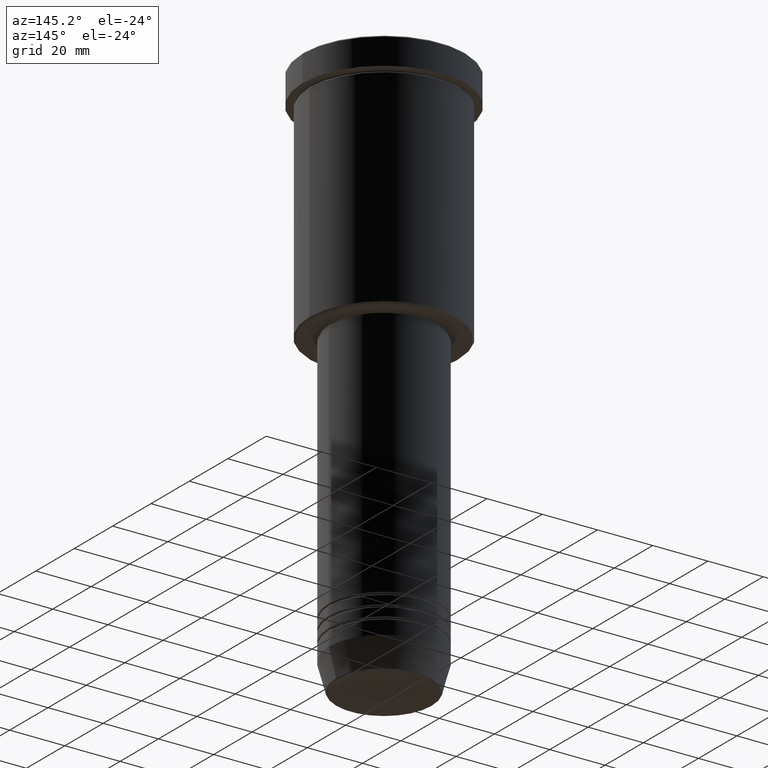
[diagram: clean part render]
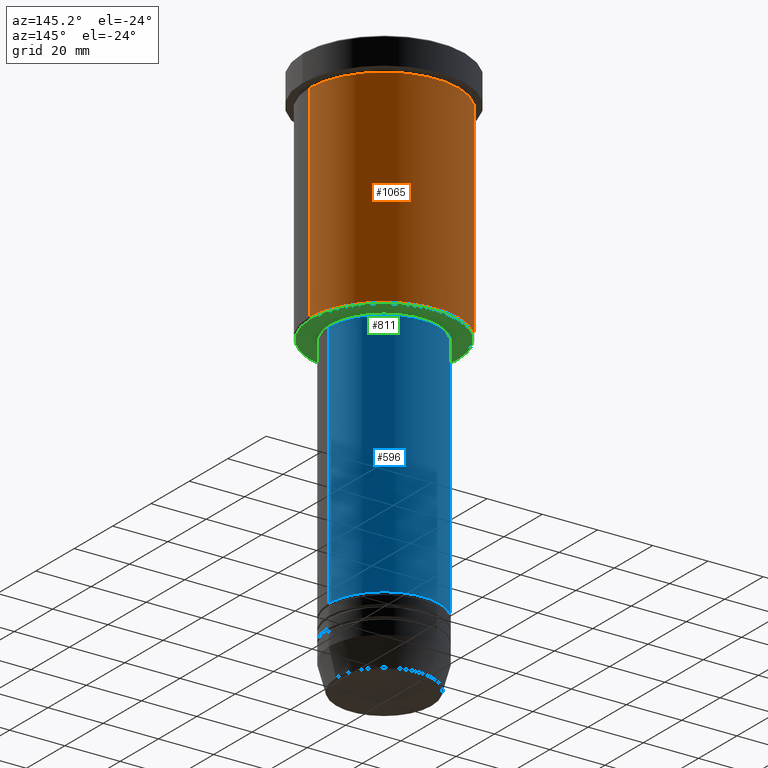
[diagram: same view with three faces highlighted in distinct colors, each labeled with its STEP entity id]
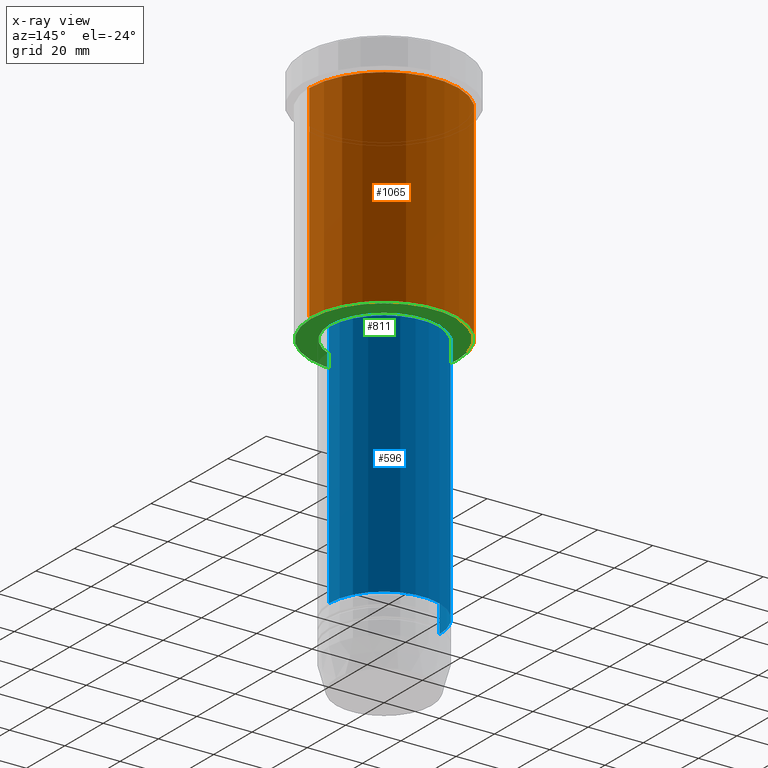
[diagram: x-ray of the same camera — body ghosted, the three highlighted faces saturated]
A machine part, auxiliary view with three faces highlighted in distinct colors.
The next image is the same camera in x-ray (body ghosted, the three faces saturated) — at least one of them is partly hidden behind the body in this view.
Their STEP definitions:

[orange] entity #1065 — the highlighted cylindrical surface (partial cylindrical patch) has radius 27 mm, axis along (-0, -0, 1).
#35 = ORIENTED_EDGE ( 'NONE', *, *, #169, .T. ) ;
#71 = AXIS2_PLACEMENT_3D ( 'NONE', #1105, #501, #848 ) ;
#122 = LINE ( 'NONE', #763, #518 ) ;
#150 = DIRECTION ( 'NONE',  ( 1.000000000000000000, 0.000000000000000000, 0.000000000000000000 ) ) ;
#169 = EDGE_CURVE ( 'NONE', #803, #358, #955, .T. ) ;
#225 = LINE ( 'NONE', #974, #381 ) ;
#232 = DIRECTION ( 'NONE',  ( -0.000000000000000000, -0.000000000000000000, 1.000000000000000000 ) ) ;
#238 = EDGE_CURVE ( 'NONE', #358, #814, #225, .T. ) ;
#252 = EDGE_CURVE ( 'NONE', #794, #814, #644, .T. ) ;
#264 = CARTESIAN_POINT ( 'NONE',  ( 27.00000000000000355, 0.000000000000000000, -85.50000000000000000 ) ) ;
#314 = ORIENTED_EDGE ( 'NONE', *, *, #238, .T. ) ;
#326 = ORIENTED_EDGE ( 'NONE', *, *, #252, .F. ) ;
#334 = CARTESIAN_POINT ( 'NONE',  ( 0.000000000000000000, 0.000000000000000000, 0.000000000000000000 ) ) ;
#339 = CYLINDRICAL_SURFACE ( 'NONE', #465, 27.00000000000000355 ) ;
#358 = VERTEX_POINT ( 'NONE', #737 ) ;
#381 = VECTOR ( 'NONE', #1049, 1000.000000000000000 ) ;
#465 = AXIS2_PLACEMENT_3D ( 'NONE', #334, #700, #613 ) ;
#501 = DIRECTION ( 'NONE',  ( -0.000000000000000000, -0.000000000000000000, 1.000000000000000000 ) ) ;
#515 = EDGE_CURVE ( 'NONE', #803, #794, #122, .T. ) ;
#518 = VECTOR ( 'NONE', #1128, 1000.000000000000000 ) ;
#587 = CARTESIAN_POINT ( 'NONE',  ( 27.00000000000000355, 0.000000000000000000, -10.99999999999999289 ) ) ;
#613 = DIRECTION ( 'NONE',  ( 1.000000000000000000, 0.000000000000000000, 0.000000000000000000 ) ) ;
#636 = CARTESIAN_POINT ( 'NONE',  ( -27.00000000000000355, 3.306546357697854128E-15, -10.99999999999999289 ) ) ;
#644 = CIRCLE ( 'NONE', #1042, 27.00000000000000355 ) ;
#670 = EDGE_LOOP ( 'NONE', ( #35, #314, #326, #805 ) ) ;
#700 = DIRECTION ( 'NONE',  ( -0.000000000000000000, -0.000000000000000000, 1.000000000000000000 ) ) ;
#737 = CARTESIAN_POINT ( 'NONE',  ( -27.00000000000000355, 3.306546357697854128E-15, -85.50000000000000000 ) ) ;
#763 = CARTESIAN_POINT ( 'NONE',  ( 27.00000000000000355, 0.000000000000000000, 0.000000000000000000 ) ) ;
#794 = VERTEX_POINT ( 'NONE', #587 ) ;
#803 = VERTEX_POINT ( 'NONE', #264 ) ;
#805 = ORIENTED_EDGE ( 'NONE', *, *, #515, .F. ) ;
#814 = VERTEX_POINT ( 'NONE', #636 ) ;
#848 = DIRECTION ( 'NONE',  ( -1.000000000000000000, 0.000000000000000000, 0.000000000000000000 ) ) ;
#891 = FACE_OUTER_BOUND ( 'NONE', #670, .T. ) ;
#955 = CIRCLE ( 'NONE', #71, 27.00000000000000355 ) ;
#962 = CARTESIAN_POINT ( 'NONE',  ( 0.000000000000000000, 0.000000000000000000, -10.99999999999999289 ) ) ;
#974 = CARTESIAN_POINT ( 'NONE',  ( -27.00000000000000355, 3.306546357697854128E-15, 0.000000000000000000 ) ) ;
#1042 = AXIS2_PLACEMENT_3D ( 'NONE', #962, #232, #150 ) ;
#1049 = DIRECTION ( 'NONE',  ( -0.000000000000000000, -0.000000000000000000, 1.000000000000000000 ) ) ;
#1065 = ADVANCED_FACE ( 'NONE', ( #891 ), #339, .T. ) ;
#1105 = CARTESIAN_POINT ( 'NONE',  ( 0.000000000000000000, 0.000000000000000000, -85.50000000000000000 ) ) ;
#1128 = DIRECTION ( 'NONE',  ( -0.000000000000000000, -0.000000000000000000, 1.000000000000000000 ) ) ;

[blue] entity #596 — the highlighted cylindrical surface (partial cylindrical patch) has radius 20 mm, axis along (-0, -0, 1).
#49 = EDGE_CURVE ( 'NONE', #450, #895, #419, .T. ) ;
#65 = EDGE_CURVE ( 'NONE', #895, #451, #929, .T. ) ;
#100 = FACE_OUTER_BOUND ( 'NONE', #721, .T. ) ;
#104 = CYLINDRICAL_SURFACE ( 'NONE', #1086, 19.99999999999999645 ) ;
#123 = DIRECTION ( 'NONE',  ( -0.000000000000000000, -0.000000000000000000, 1.000000000000000000 ) ) ;
#129 = AXIS2_PLACEMENT_3D ( 'NONE', #837, #220, #748 ) ;
#139 = CARTESIAN_POINT ( 'NONE',  ( 19.99999999999999645, 0.000000000000000000, -87.00000000000004263 ) ) ;
#181 = CARTESIAN_POINT ( 'NONE',  ( -19.99999999999999645, 2.449293598294706119E-15, -87.00000000000004263 ) ) ;
#209 = VECTOR ( 'NONE', #623, 1000.000000000000000 ) ;
#220 = DIRECTION ( 'NONE',  ( -0.000000000000000000, -0.000000000000000000, 1.000000000000000000 ) ) ;
#275 = VERTEX_POINT ( 'NONE', #139 ) ;
#278 = ORIENTED_EDGE ( 'NONE', *, *, #49, .T. ) ;
#286 = ORIENTED_EDGE ( 'NONE', *, *, #1090, .F. ) ;
#287 = DIRECTION ( 'NONE',  ( 1.000000000000000000, 0.000000000000000000, 0.000000000000000000 ) ) ;
#353 = CARTESIAN_POINT ( 'NONE',  ( 19.99999999999999645, 0.000000000000000000, 0.000000000000000000 ) ) ;
#359 = CARTESIAN_POINT ( 'NONE',  ( -20.00000000000000000, 2.449293598294706513E-15, -176.9999999999999147 ) ) ;
#360 = CARTESIAN_POINT ( 'NONE',  ( 20.00000000000000000, 0.000000000000000000, -176.9999999999999147 ) ) ;
#419 = CIRCLE ( 'NONE', #129, 20.00000000000000000 ) ;
#450 = VERTEX_POINT ( 'NONE', #360 ) ;
#451 = VERTEX_POINT ( 'NONE', #181 ) ;
#469 = CARTESIAN_POINT ( 'NONE',  ( 0.000000000000000000, 0.000000000000000000, -87.00000000000004263 ) ) ;
#491 = DIRECTION ( 'NONE',  ( -0.000000000000000000, -0.000000000000000000, 1.000000000000000000 ) ) ;
#596 = ADVANCED_FACE ( 'NONE', ( #100 ), #104, .T. ) ;
#601 = EDGE_CURVE ( 'NONE', #275, #451, #629, .T. ) ;
#623 = DIRECTION ( 'NONE',  ( -0.000000000000000000, -0.000000000000000000, 1.000000000000000000 ) ) ;
#629 = CIRCLE ( 'NONE', #841, 19.99999999999999645 ) ;
#649 = DIRECTION ( 'NONE',  ( 1.000000000000000000, 0.000000000000000000, 0.000000000000000000 ) ) ;
#667 = DIRECTION ( 'NONE',  ( -0.000000000000000000, -0.000000000000000000, 1.000000000000000000 ) ) ;
#721 = EDGE_LOOP ( 'NONE', ( #278, #778, #975, #286 ) ) ;
#747 = CARTESIAN_POINT ( 'NONE',  ( 0.000000000000000000, 0.000000000000000000, 0.000000000000000000 ) ) ;
#748 = DIRECTION ( 'NONE',  ( 1.000000000000000000, 0.000000000000000000, 0.000000000000000000 ) ) ;
#778 = ORIENTED_EDGE ( 'NONE', *, *, #65, .T. ) ;
#804 = LINE ( 'NONE', #353, #209 ) ;
#837 = CARTESIAN_POINT ( 'NONE',  ( 0.000000000000000000, 0.000000000000000000, -176.9999999999999147 ) ) ;
#841 = AXIS2_PLACEMENT_3D ( 'NONE', #469, #491, #649 ) ;
#864 = CARTESIAN_POINT ( 'NONE',  ( -19.99999999999999645, 2.449293598294706119E-15, 0.000000000000000000 ) ) ;
#895 = VERTEX_POINT ( 'NONE', #359 ) ;
#929 = LINE ( 'NONE', #864, #934 ) ;
#934 = VECTOR ( 'NONE', #123, 1000.000000000000000 ) ;
#975 = ORIENTED_EDGE ( 'NONE', *, *, #601, .F. ) ;
#1086 = AXIS2_PLACEMENT_3D ( 'NONE', #747, #667, #287 ) ;
#1090 = EDGE_CURVE ( 'NONE', #450, #275, #804, .T. ) ;

[green] entity #811 — the highlighted planar face has unit normal (0, 0, -1).
#2 = FACE_BOUND ( 'NONE', #943, .T. ) ;
#32 = DIRECTION ( 'NONE',  ( -1.000000000000000000, 0.000000000000000000, 0.000000000000000000 ) ) ;
#36 = AXIS2_PLACEMENT_3D ( 'NONE', #906, #453, #457 ) ;
#44 = DIRECTION ( 'NONE',  ( 1.000000000000000000, 0.000000000000000000, 0.000000000000000000 ) ) ;
#77 = ORIENTED_EDGE ( 'NONE', *, *, #774, .T. ) ;
#80 = FACE_OUTER_BOUND ( 'NONE', #1131, .T. ) ;
#128 = EDGE_CURVE ( 'NONE', #1082, #753, #558, .T. ) ;
#253 = CARTESIAN_POINT ( 'NONE',  ( 19.50000000000000000, 0.000000000000000000, -86.00000000000001421 ) ) ;
#295 = EDGE_CURVE ( 'NONE', #503, #926, #1104, .T. ) ;
#328 = CARTESIAN_POINT ( 'NONE',  ( -26.49999999999999645, 3.275930187719169552E-15, -86.00000000000001421 ) ) ;
#404 = AXIS2_PLACEMENT_3D ( 'NONE', #770, #971, #44 ) ;
#453 = DIRECTION ( 'NONE',  ( 0.000000000000000000, 0.000000000000000000, -1.000000000000000000 ) ) ;
#457 = DIRECTION ( 'NONE',  ( -1.000000000000000000, 0.000000000000000000, -0.000000000000000000 ) ) ;
#477 = ORIENTED_EDGE ( 'NONE', *, *, #295, .T. ) ;
#503 = VERTEX_POINT ( 'NONE', #253 ) ;
#558 = CIRCLE ( 'NONE', #1180, 26.49999999999999645 ) ;
#568 = DIRECTION ( 'NONE',  ( 0.000000000000000000, 0.000000000000000000, -1.000000000000000000 ) ) ;
#595 = CARTESIAN_POINT ( 'NONE',  ( 0.000000000000000000, 0.000000000000000000, -86.00000000000001421 ) ) ;
#609 = AXIS2_PLACEMENT_3D ( 'NONE', #595, #893, #776 ) ;
#639 = ORIENTED_EDGE ( 'NONE', *, *, #128, .T. ) ;
#705 = CARTESIAN_POINT ( 'NONE',  ( 0.000000000000000000, 0.000000000000000000, -86.00000000000001421 ) ) ;
#751 = EDGE_CURVE ( 'NONE', #926, #503, #901, .T. ) ;
#753 = VERTEX_POINT ( 'NONE', #1133 ) ;
#770 = CARTESIAN_POINT ( 'NONE',  ( 0.000000000000000000, 0.000000000000000000, -86.00000000000001421 ) ) ;
#774 = EDGE_CURVE ( 'NONE', #753, #1082, #1068, .T. ) ;
#776 = DIRECTION ( 'NONE',  ( 1.000000000000000000, 0.000000000000000000, 0.000000000000000000 ) ) ;
#811 = ADVANCED_FACE ( 'NONE', ( #80, #2 ), #1078, .T. ) ;
#854 = CARTESIAN_POINT ( 'NONE',  ( 0.000000000000000000, 0.000000000000000000, -86.00000000000001421 ) ) ;
#862 = DIRECTION ( 'NONE',  ( 0.000000000000000000, 0.000000000000000000, -1.000000000000000000 ) ) ;
#893 = DIRECTION ( 'NONE',  ( -0.000000000000000000, -0.000000000000000000, 1.000000000000000000 ) ) ;
#901 = CIRCLE ( 'NONE', #404, 19.50000000000000000 ) ;
#906 = CARTESIAN_POINT ( 'NONE',  ( 0.000000000000000000, 27.00000000000000355, -86.00000000000001421 ) ) ;
#926 = VERTEX_POINT ( 'NONE', #978 ) ;
#938 = AXIS2_PLACEMENT_3D ( 'NONE', #705, #862, #1067 ) ;
#943 = EDGE_LOOP ( 'NONE', ( #477, #1091 ) ) ;
#971 = DIRECTION ( 'NONE',  ( -0.000000000000000000, -0.000000000000000000, 1.000000000000000000 ) ) ;
#978 = CARTESIAN_POINT ( 'NONE',  ( -19.50000000000000000, 2.388061258337338939E-15, -86.00000000000001421 ) ) ;
#1067 = DIRECTION ( 'NONE',  ( -1.000000000000000000, 0.000000000000000000, 0.000000000000000000 ) ) ;
#1068 = CIRCLE ( 'NONE', #938, 26.49999999999999645 ) ;
#1078 = PLANE ( 'NONE',  #36 ) ;
#1082 = VERTEX_POINT ( 'NONE', #328 ) ;
#1091 = ORIENTED_EDGE ( 'NONE', *, *, #751, .T. ) ;
#1104 = CIRCLE ( 'NONE', #609, 19.50000000000000000 ) ;
#1131 = EDGE_LOOP ( 'NONE', ( #77, #639 ) ) ;
#1133 = CARTESIAN_POINT ( 'NONE',  ( 26.49999999999999645, 0.000000000000000000, -86.00000000000001421 ) ) ;
#1180 = AXIS2_PLACEMENT_3D ( 'NONE', #854, #568, #32 ) ;